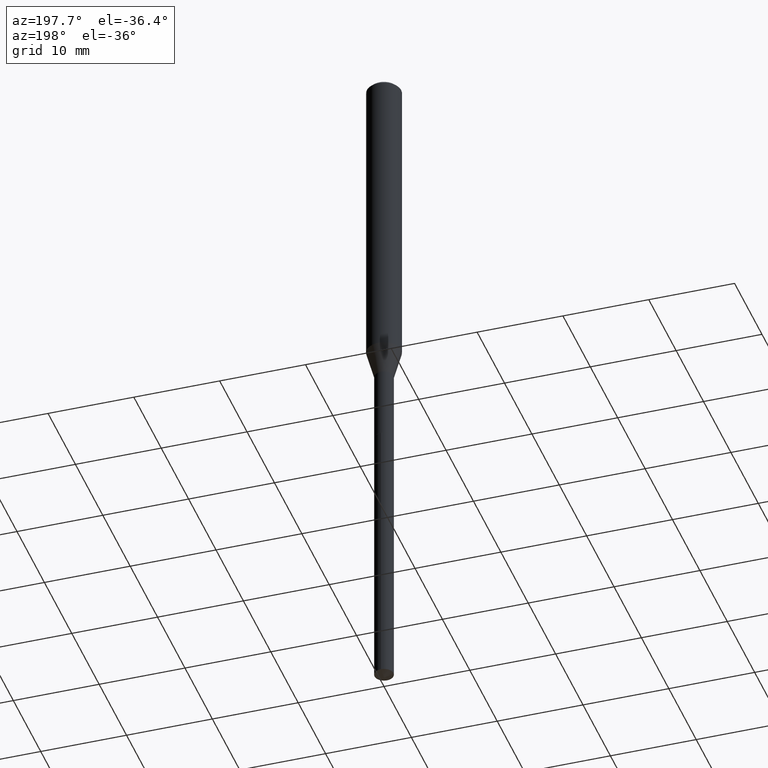
[diagram: clean part render]
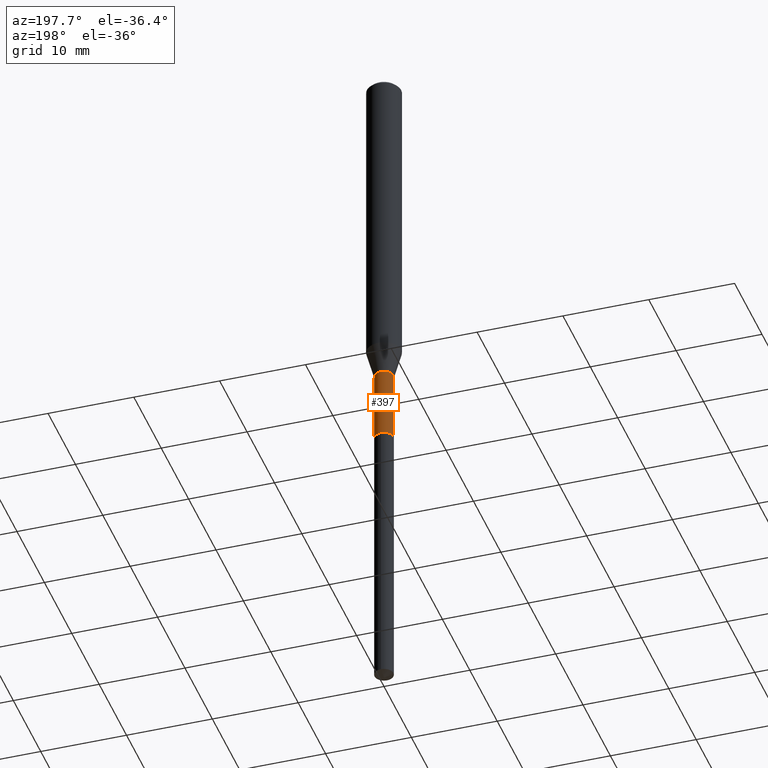
[diagram: same view with one face highlighted and labeled with its STEP entity id]
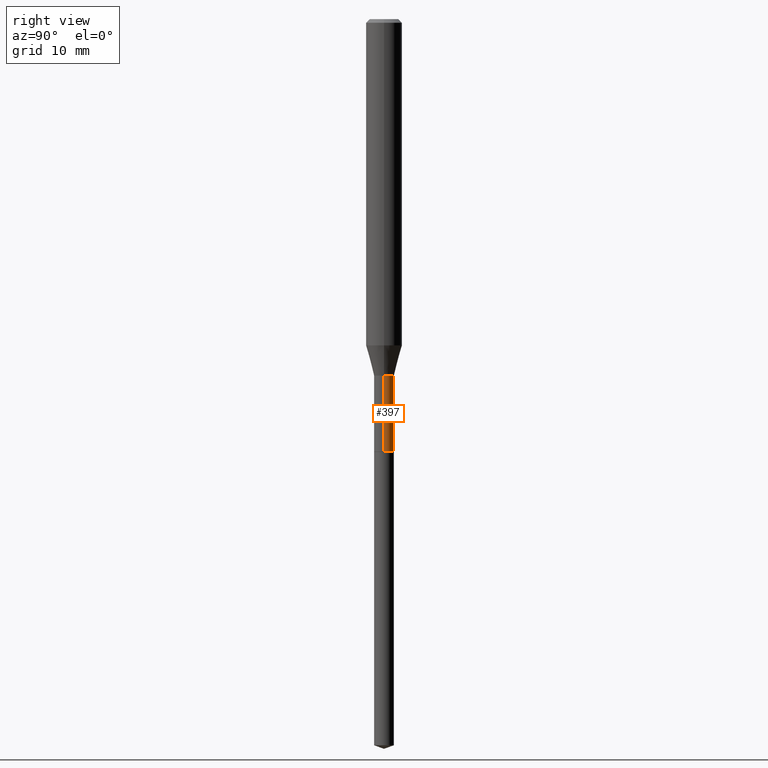
[diagram: same view with one face highlighted and labeled with its STEP entity id]
A machine part, auxiliary view. The second image highlights one B-rep face of the part: STEP entity #397.
A second angle (right view) of the same face is appended — the face is thin or edge-on in the first view.
In plain terms, the highlighted cylindrical surface (edge-blend (fillet) strip) has radius 1.0998 mm, axis along (-0, 0, 1).
Its self-contained STEP definition (entity closure, byte-faithful):
#16 = ORIENTED_EDGE ( 'NONE', *, *, #45, .F. ) ;
#24 = DIRECTION ( 'NONE',  ( -2.445468806185136877E-29, 3.491481338843145188E-15, 1.000000000000000000 ) ) ;
#30 = CARTESIAN_POINT ( 'NONE',  ( 0.04329999999999994270, -5.741741061727553218E-15, -1.557900000000000285 ) ) ;
#33 = CARTESIAN_POINT ( 'NONE',  ( 3.809795853155824737E-29, -5.439378777783737756E-15, -1.557900000000000285 ) ) ;
#41 = DIRECTION ( 'NONE',  ( -2.445468806185136597E-29, 3.491481338843145583E-15, 1.000000000000000000 ) ) ;
#45 = EDGE_CURVE ( 'NONE', #387, #308, #370, .T. ) ;
#46 = CYLINDRICAL_SURFACE ( 'NONE', #110, 0.04329999999999996352 ) ;
#55 = CARTESIAN_POINT ( 'NONE',  ( -0.04329999999999997740, -5.710252231045924288E-15, -1.889300000000000423 ) ) ;
#65 = DIRECTION ( 'NONE',  ( -2.445468806185136597E-29, 3.491481338843145583E-15, 1.000000000000000000 ) ) ;
#81 = FACE_OUTER_BOUND ( 'NONE', #391, .T. ) ;
#97 = CIRCLE ( 'NONE', #383, 0.04329999999999997740 ) ;
#110 = AXIS2_PLACEMENT_3D ( 'NONE', #116, #41, #310 ) ;
#116 = CARTESIAN_POINT ( 'NONE',  ( 0.000000000000000000, 0.000000000000000000, 0.000000000000000000 ) ) ;
#130 = LINE ( 'NONE', #219, #247 ) ;
#135 = EDGE_CURVE ( 'NONE', #290, #167, #130, .T. ) ;
#142 = CIRCLE ( 'NONE', #409, 0.04329999999999994270 ) ;
#167 = VERTEX_POINT ( 'NONE', #334 ) ;
#178 = ORIENTED_EDGE ( 'NONE', *, *, #356, .T. ) ;
#203 = ORIENTED_EDGE ( 'NONE', *, *, #264, .F. ) ;
#217 = DIRECTION ( 'NONE',  ( 1.000000000000000000, -6.982962677686272233E-15, 0.000000000000000000 ) ) ;
#219 = CARTESIAN_POINT ( 'NONE',  ( -0.04329999999999996352, 3.076650045841231213E-16, -2.129898894080372302E-30 ) ) ;
#247 = VECTOR ( 'NONE', #24, 39.37007874015748143 ) ;
#264 = EDGE_CURVE ( 'NONE', #308, #167, #142, .T. ) ;
#290 = VERTEX_POINT ( 'NONE', #55 ) ;
#303 = VECTOR ( 'NONE', #483, 39.37007874015748143 ) ;
#308 = VERTEX_POINT ( 'NONE', #30 ) ;
#310 = DIRECTION ( 'NONE',  ( 1.000000000000000000, -6.982962677686267499E-15, 4.876176775795935232E-29 ) ) ;
#334 = CARTESIAN_POINT ( 'NONE',  ( -0.04329999999999994270, -5.710252231045924288E-15, -1.557900000000000285 ) ) ;
#345 = ORIENTED_EDGE ( 'NONE', *, *, #135, .T. ) ;
#349 = DIRECTION ( 'NONE',  ( 1.000000000000000000, -6.982962677686277755E-15, 0.000000000000000000 ) ) ;
#350 = CARTESIAN_POINT ( 'NONE',  ( 0.04329999999999997740, -6.898817977420172327E-15, -1.889300000000000423 ) ) ;
#354 = DIRECTION ( 'NONE',  ( -2.445468806185136597E-29, 3.491481338843145583E-15, 1.000000000000000000 ) ) ;
#356 = EDGE_CURVE ( 'NONE', #387, #290, #97, .T. ) ;
#370 = LINE ( 'NONE', #437, #303 ) ;
#383 = AXIS2_PLACEMENT_3D ( 'NONE', #449, #65, #217 ) ;
#387 = VERTEX_POINT ( 'NONE', #350 ) ;
#391 = EDGE_LOOP ( 'NONE', ( #178, #345, #203, #16 ) ) ;
#397 = ADVANCED_FACE ( 'NONE', ( #81 ), #46, .T. ) ;
#409 = AXIS2_PLACEMENT_3D ( 'NONE', #33, #354, #349 ) ;
#437 = CARTESIAN_POINT ( 'NONE',  ( 0.04329999999999996352, -3.023622839438151170E-16, 2.111384543919638175E-30 ) ) ;
#449 = CARTESIAN_POINT ( 'NONE',  ( 4.620224215525580309E-29, -6.596455693476356864E-15, -1.889300000000000423 ) ) ;
#483 = DIRECTION ( 'NONE',  ( -2.445468806185136877E-29, 3.491481338843145188E-15, 1.000000000000000000 ) ) ;